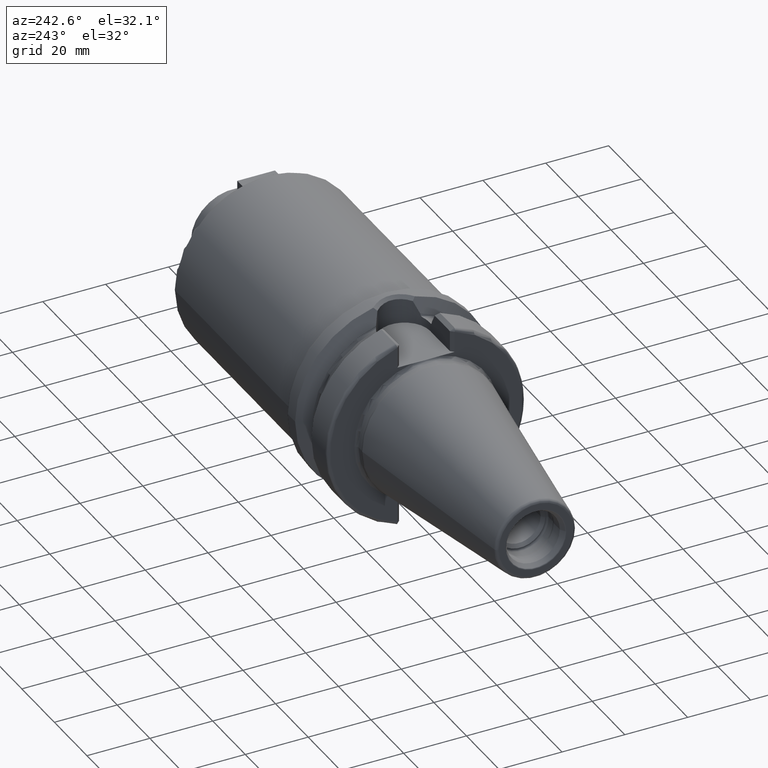
[diagram: clean part render]
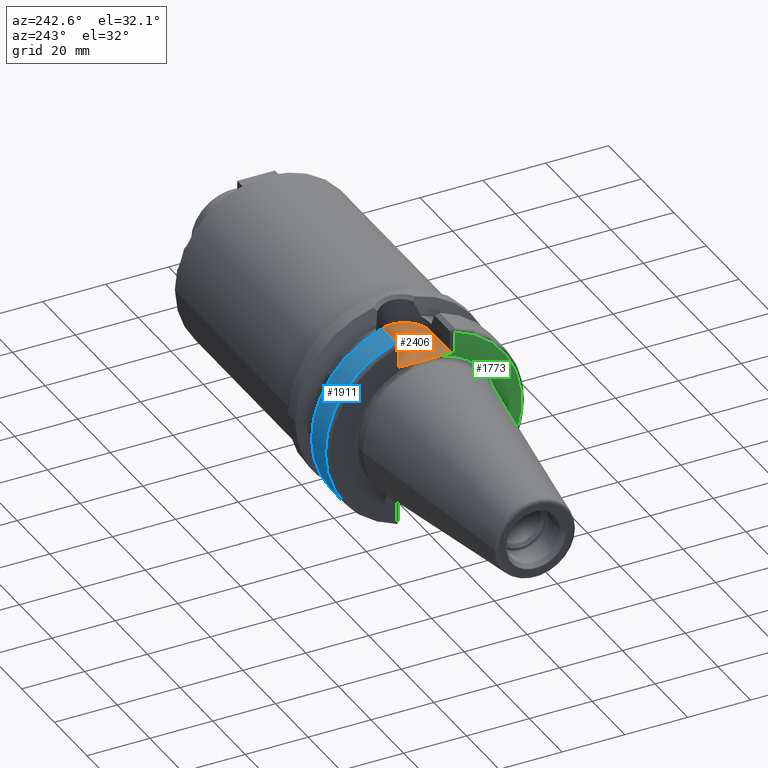
[diagram: same view with three faces highlighted in distinct colors, each labeled with its STEP entity id]
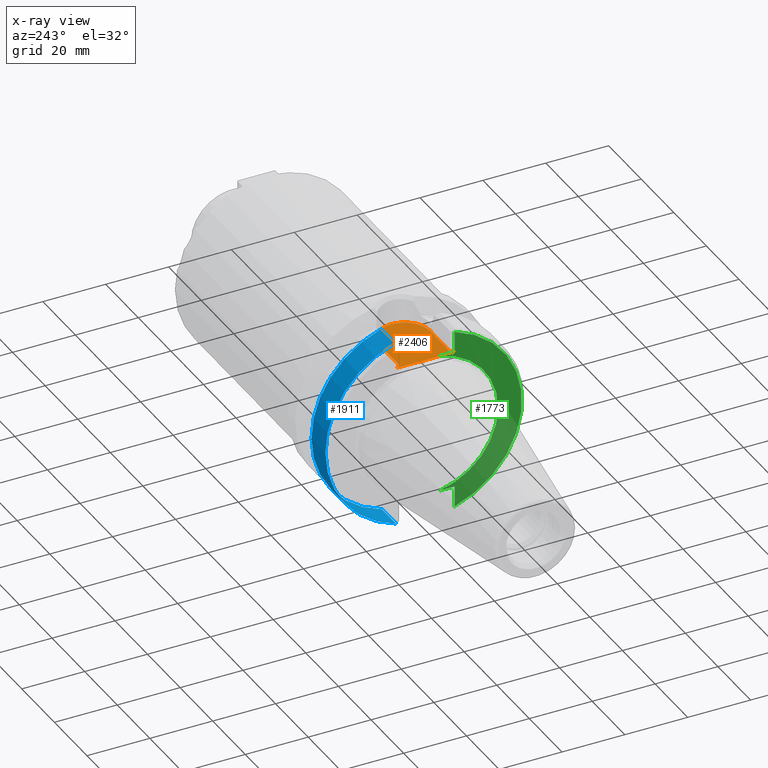
[diagram: x-ray of the same camera — body ghosted, the three highlighted faces saturated]
A machine part, auxiliary view with three faces highlighted in distinct colors.
The next image is the same camera in x-ray (body ghosted, the three faces saturated) — at least one of them is partly hidden behind the body in this view.
Their STEP definitions:

[orange] entity #2406 — the highlighted planar face has unit normal (0, 0, 1).
#680=DIRECTION('',(1.E0,0.E0,0.E0));
#681=VECTOR('',#680,1.2155E1);
#682=CARTESIAN_POINT('',(3.E0,-8.095E0,2.245E1));
#683=LINE('',#682,#681);
#684=DIRECTION('',(0.E0,1.E0,0.E0));
#685=VECTOR('',#684,4.706022328605E0);
#686=CARTESIAN_POINT('',(2.E0,-9.095E0,2.245E1));
#687=LINE('',#686,#685);
#688=DIRECTION('',(0.E0,1.E0,0.E0));
#689=VECTOR('',#688,4.706022328605E0);
#690=CARTESIAN_POINT('',(2.E0,4.388977671395E0,2.245E1));
#691=LINE('',#690,#689);
#692=DIRECTION('',(-1.E0,0.E0,0.E0));
#693=VECTOR('',#692,1.2155E1);
#694=CARTESIAN_POINT('',(1.5155E1,8.095E0,2.245E1));
#695=LINE('',#694,#693);
#696=CARTESIAN_POINT('',(1.5155E1,0.E0,2.245E1));
#697=DIRECTION('',(0.E0,0.E0,1.E0));
#698=DIRECTION('',(0.E0,-1.E0,0.E0));
#699=AXIS2_PLACEMENT_3D('',#696,#697,#698);
#705=DIRECTION('',(7.071067811865E-1,7.071067811865E-1,0.E0));
#706=VECTOR('',#705,1.414213562373E0);
#707=CARTESIAN_POINT('',(2.E0,-9.095E0,2.245E1));
#708=LINE('',#707,#706);
#714=CARTESIAN_POINT('',(2.E0,-4.388977671395E0,2.245E1));
#715=CARTESIAN_POINT('',(2.E0,-3.970864393558E0,2.245E1));
#716=CARTESIAN_POINT('',(1.981114905487E0,-3.134790252725E0,2.245E1));
#717=CARTESIAN_POINT('',(1.935909306649E0,-1.881114481277E0,2.245E1));
#718=CARTESIAN_POINT('',(1.903922826077E0,-6.271978192649E-1,2.245E1));
#719=CARTESIAN_POINT('',(1.903921553166E0,6.271174205746E-1,2.245E1));
#720=CARTESIAN_POINT('',(1.935907277499E0,1.881058976319E0,2.245E1));
#721=CARTESIAN_POINT('',(1.981114329557E0,3.134769380755E0,2.245E1));
#722=CARTESIAN_POINT('',(2.E0,3.970858027314E0,2.245E1));
#723=CARTESIAN_POINT('',(2.E0,4.388977671395E0,2.245E1));
#730=DIRECTION('',(-7.071067811865E-1,7.071067811865E-1,0.E0));
#731=VECTOR('',#730,1.414213562373E0);
#732=CARTESIAN_POINT('',(3.E0,8.095E0,2.245E1));
#733=LINE('',#732,#731);
#1428=CARTESIAN_POINT('',(1.5155E1,-8.095E0,2.245E1));
#1429=CARTESIAN_POINT('',(1.5155E1,8.095E0,2.245E1));
#1430=VERTEX_POINT('',#1428);
#1431=VERTEX_POINT('',#1429);
#1432=CARTESIAN_POINT('',(2.E0,4.388977671395E0,2.245E1));
#1433=VERTEX_POINT('',#1432);
#1434=CARTESIAN_POINT('',(2.E0,-4.388977671395E0,2.245E1));
#1435=VERTEX_POINT('',#1434);
#1469=CARTESIAN_POINT('',(3.E0,-8.095E0,2.245E1));
#1471=VERTEX_POINT('',#1469);
#1473=CARTESIAN_POINT('',(2.E0,-9.095E0,2.245E1));
#1475=VERTEX_POINT('',#1473);
#1482=CARTESIAN_POINT('',(2.E0,9.095E0,2.245E1));
#1483=VERTEX_POINT('',#1482);
#1484=CARTESIAN_POINT('',(3.E0,8.095E0,2.245E1));
#1486=VERTEX_POINT('',#1484);
#2388=CARTESIAN_POINT('',(0.E0,0.E0,2.245E1));
#2389=DIRECTION('',(0.E0,0.E0,1.E0));
#2390=DIRECTION('',(1.E0,0.E0,0.E0));
#2391=AXIS2_PLACEMENT_3D('',#2388,#2389,#2390);
#2392=PLANE('',#2391);
#2393=ORIENTED_EDGE('',*,*,#2154,.F.);
#2395=ORIENTED_EDGE('',*,*,#2394,.F.);
#2396=ORIENTED_EDGE('',*,*,#1765,.T.);
#2398=ORIENTED_EDGE('',*,*,#2397,.T.);
#2399=ORIENTED_EDGE('',*,*,#1743,.T.);
#2401=ORIENTED_EDGE('',*,*,#2400,.F.);
#2402=ORIENTED_EDGE('',*,*,#2379,.F.);
#2403=ORIENTED_EDGE('',*,*,#2125,.F.);
#2404=EDGE_LOOP('',(#2393,#2395,#2396,#2398,#2399,#2401,#2402,#2403));
#2405=FACE_OUTER_BOUND('',#2404,.F.);
#2406=ADVANCED_FACE('',(#2405),#2392,.T.);
#700=CIRCLE('',#699,8.095E0);
#724=B_SPLINE_CURVE_WITH_KNOTS('',3,(#714,#715,#716,#717,#718,#719,#720,#721,
#722,#723),.UNSPECIFIED.,.F.,.F.,(4,1,1,1,1,1,1,4),(0.E0,1.428571428571E-1,
2.857142857143E-1,4.285714285714E-1,5.714285714286E-1,7.142857142857E-1,
8.571428571429E-1,1.E0),.UNSPECIFIED.);
#1743=EDGE_CURVE('',#1433,#1483,#691,.T.);
#1765=EDGE_CURVE('',#1475,#1435,#687,.T.);
#2125=EDGE_CURVE('',#1430,#1431,#700,.T.);
#2154=EDGE_CURVE('',#1471,#1430,#683,.T.);
#2379=EDGE_CURVE('',#1431,#1486,#695,.T.);
#2394=EDGE_CURVE('',#1475,#1471,#708,.T.);
#2397=EDGE_CURVE('',#1435,#1433,#724,.T.);
#2400=EDGE_CURVE('',#1486,#1483,#733,.T.);

[blue] entity #1911 — the highlighted cylindrical surface (partial cylindrical patch) has radius 31.4875 mm, axis along (1, 0, 0).
#228=CARTESIAN_POINT('',(3.E0,0.E0,0.E0));
#229=DIRECTION('',(-1.E0,0.E0,0.E0));
#230=DIRECTION('',(0.E0,2.983189831898E-1,9.544662300305E-1));
#231=AXIS2_PLACEMENT_3D('',#228,#229,#230);
#233=DIRECTION('',(-9.999999999998E-1,-3.572441515959E-7,-4.802508939409E-7));
#234=VECTOR('',#233,8.572722533299E0);
#235=CARTESIAN_POINT('',(1.157272253103E1,9.052779463114E0,-3.015808084481E1));
#236=LINE('',#235,#234);
#237=CARTESIAN_POINT('',(1.157272253103E1,0.E0,0.E0));
#238=DIRECTION('',(1.E0,0.E0,0.E0));
#239=DIRECTION('',(0.E0,2.875039130802E-1,-9.577794631143E-1));
#240=AXIS2_PLACEMENT_3D('',#237,#238,#239);
#242=DIRECTION('',(9.999999999911E-1,2.496639373931E-6,-3.395432034657E-6));
#243=VECTOR('',#242,8.572722551500E0);
#244=CARTESIAN_POINT('',(2.999999979607E0,9.393297580193E0,3.005378452618E1));
#245=LINE('',#244,#243);
#576=CARTESIAN_POINT('',(2.999999997734E0,9.052776400559E0,-3.015808496187E1));
#1464=CARTESIAN_POINT('',(1.157272253103E1,9.052779463114E0,-3.015808084481E1));
#1465=CARTESIAN_POINT('',(1.157272253103E1,9.393318983190E0,3.005375541808E1));
#1466=VERTEX_POINT('',#1464);
#1467=VERTEX_POINT('',#1465);
#1479=CARTESIAN_POINT('',(3.E0,9.393347656107E0,3.005374645633E1));
#1481=VERTEX_POINT('',#1479);
#1496=VERTEX_POINT('',#576);
#1897=CARTESIAN_POINT('',(-7.002E1,0.E0,0.E0));
#1898=DIRECTION('',(1.E0,0.E0,0.E0));
#1899=DIRECTION('',(0.E0,-1.E0,0.E0));
#1900=AXIS2_PLACEMENT_3D('',#1897,#1898,#1899);
#1901=CYLINDRICAL_SURFACE('',#1900,3.14875E1);
#1903=ORIENTED_EDGE('',*,*,#1902,.T.);
#1905=ORIENTED_EDGE('',*,*,#1904,.F.);
#1906=ORIENTED_EDGE('',*,*,#1850,.T.);
#1908=ORIENTED_EDGE('',*,*,#1907,.F.);
#1909=EDGE_LOOP('',(#1903,#1905,#1906,#1908));
#1910=FACE_OUTER_BOUND('',#1909,.F.);
#1911=ADVANCED_FACE('',(#1910),#1901,.T.);
#232=CIRCLE('',#231,3.14875E1);
#241=CIRCLE('',#240,3.14875E1);
#1850=EDGE_CURVE('',#1466,#1467,#241,.T.);
#1902=EDGE_CURVE('',#1481,#1496,#232,.T.);
#1904=EDGE_CURVE('',#1466,#1496,#236,.T.);
#1907=EDGE_CURVE('',#1481,#1467,#245,.T.);

[green] entity #1773 — the highlighted planar face has unit normal (1, 0, 0).
#111=CARTESIAN_POINT('',(2.E0,0.E0,0.E0));
#112=DIRECTION('',(-1.E0,0.E0,0.E0));
#113=DIRECTION('',(0.E0,-1.918678763451E-1,-9.814207650273E-1));
#114=AXIS2_PLACEMENT_3D('',#111,#112,#113);
#135=DIRECTION('',(-2.137863157207E-6,2.138092595446E-6,-9.999999999954E-1));
#136=VECTOR('',#135,6.649288203879E0);
#137=CARTESIAN_POINT('',(2.E0,-9.095E0,-2.245E1));
#138=LINE('',#137,#136);
#139=DIRECTION('',(4.462834027234E-6,-4.463945838797E-6,-9.999999999801E-1));
#140=VECTOR('',#139,6.649296399172E0);
#141=CARTESIAN_POINT('',(1.999970325294E0,-9.094970317901E0,2.909929639904E1));
#142=LINE('',#141,#140);
#597=CARTESIAN_POINT('',(1.999985784732E0,-9.094985783206E0,-2.909928820385E1));
#608=CARTESIAN_POINT('',(2.E0,0.E0,0.E0));
#609=DIRECTION('',(-1.E0,0.E0,0.E0));
#610=DIRECTION('',(0.E0,-2.983190208830E-1,-9.544662182495E-1));
#611=AXIS2_PLACEMENT_3D('',#608,#609,#610);
#684=DIRECTION('',(0.E0,1.E0,0.E0));
#685=VECTOR('',#684,4.706022328605E0);
#686=CARTESIAN_POINT('',(2.E0,-9.095E0,2.245E1));
#687=LINE('',#686,#685);
#725=CARTESIAN_POINT('',(2.E0,0.E0,0.E0));
#726=DIRECTION('',(1.E0,0.E0,0.E0));
#727=DIRECTION('',(0.E0,-1.918678763451E-1,9.814207650273E-1));
#728=AXIS2_PLACEMENT_3D('',#725,#726,#727);
#750=DIRECTION('',(0.E0,-1.E0,0.E0));
#751=VECTOR('',#750,4.706022328605E0);
#752=CARTESIAN_POINT('',(2.E0,-4.388977671395E0,-2.245E1));
#753=LINE('',#752,#751);
#1372=CARTESIAN_POINT('',(2.E0,-2.2875E1,0.E0));
#1374=VERTEX_POINT('',#1372);
#1434=CARTESIAN_POINT('',(2.E0,-4.388977671395E0,2.245E1));
#1435=VERTEX_POINT('',#1434);
#1442=CARTESIAN_POINT('',(2.E0,-4.388977671395E0,-2.245E1));
#1443=VERTEX_POINT('',#1442);
#1472=CARTESIAN_POINT('',(1.999970325294E0,-9.094970317901E0,2.909929639904E1));
#1473=CARTESIAN_POINT('',(2.E0,-9.095E0,2.245E1));
#1474=VERTEX_POINT('',#1472);
#1475=VERTEX_POINT('',#1473);
#1497=VERTEX_POINT('',#597);
#1499=CARTESIAN_POINT('',(2.E0,-9.095E0,-2.245E1));
#1500=VERTEX_POINT('',#1499);
#1753=CARTESIAN_POINT('',(2.E0,0.E0,0.E0));
#1754=DIRECTION('',(1.E0,0.E0,0.E0));
#1755=DIRECTION('',(0.E0,-1.E0,0.E0));
#1756=AXIS2_PLACEMENT_3D('',#1753,#1754,#1755);
#1757=PLANE('',#1756);
#1759=ORIENTED_EDGE('',*,*,#1758,.F.);
#1761=ORIENTED_EDGE('',*,*,#1760,.F.);
#1762=ORIENTED_EDGE('',*,*,#1725,.T.);
#1764=ORIENTED_EDGE('',*,*,#1763,.F.);
#1766=ORIENTED_EDGE('',*,*,#1765,.F.);
#1768=ORIENTED_EDGE('',*,*,#1767,.F.);
#1770=ORIENTED_EDGE('',*,*,#1769,.F.);
#1771=EDGE_LOOP('',(#1759,#1761,#1762,#1764,#1766,#1768,#1770));
#1772=FACE_OUTER_BOUND('',#1771,.F.);
#1773=ADVANCED_FACE('',(#1772),#1757,.F.);
#115=CIRCLE('',#114,2.2875E1);
#612=CIRCLE('',#611,3.04875E1);
#729=CIRCLE('',#728,2.2875E1);
#1725=EDGE_CURVE('',#1443,#1374,#115,.T.);
#1758=EDGE_CURVE('',#1500,#1497,#138,.T.);
#1760=EDGE_CURVE('',#1443,#1500,#753,.T.);
#1763=EDGE_CURVE('',#1435,#1374,#729,.T.);
#1765=EDGE_CURVE('',#1475,#1435,#687,.T.);
#1767=EDGE_CURVE('',#1474,#1475,#142,.T.);
#1769=EDGE_CURVE('',#1497,#1474,#612,.T.);